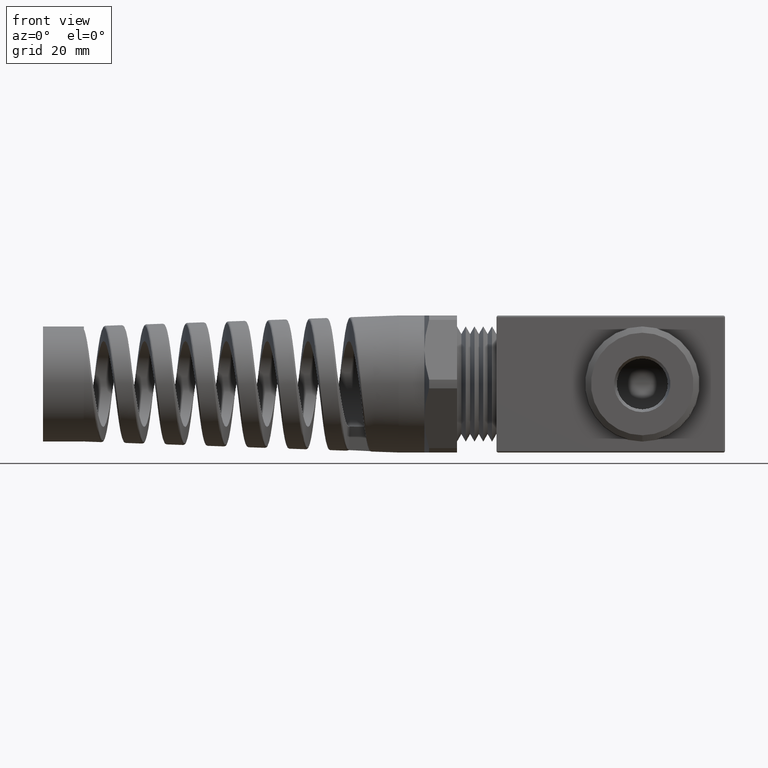
[diagram: clean part render]
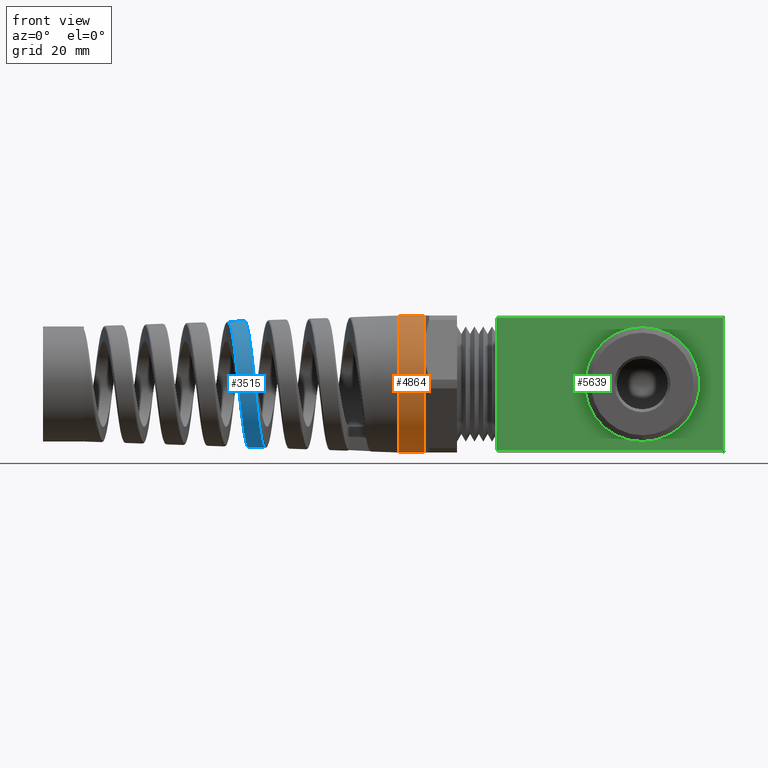
[diagram: same view with three faces highlighted in distinct colors, each labeled with its STEP entity id]
A machine part, front view with three faces highlighted in distinct colors.
Their STEP definitions:

[orange] entity #4864 — the highlighted cylindrical surface (partial cylindrical patch) has radius 11.938 mm, axis along (-1, 0, 0).
#3659 = VERTEX_POINT ( 'NONE', #7512 ) ;
#3689 = VERTEX_POINT ( 'NONE', #7692 ) ;
#4059 = EDGE_CURVE ( 'NONE', #4063, #3689, #8710, .T. ) ;
#4063 = VERTEX_POINT ( 'NONE', #8700 ) ;
#4065 = EDGE_CURVE ( 'NONE', #4113, #3659, #8699, .T. ) ;
#4113 = VERTEX_POINT ( 'NONE', #8954 ) ;
#4530 = EDGE_CURVE ( 'NONE', #6203, #4063, #10232, .T. ) ;
#4641 = EDGE_CURVE ( 'NONE', #4113, #5611, #10367, .T. ) ;
#4648 = EDGE_CURVE ( 'NONE', #5611, #6203, #10349, .T. ) ;
#4864 = ADVANCED_FACE ( 'NONE', ( #10752 ), #10631, .T. ) ;
#4865 = EDGE_LOOP ( 'NONE', ( #4866, #4867, #4868, #4872, #4873, #4874 ) ) ;
#4866 = ORIENTED_EDGE ( 'NONE', *, *, #4065, .F. ) ;
#4867 = ORIENTED_EDGE ( 'NONE', *, *, #4641, .T. ) ;
#4868 = ORIENTED_EDGE ( 'NONE', *, *, #4648, .T. ) ;
#4872 = ORIENTED_EDGE ( 'NONE', *, *, #4530, .T. ) ;
#4873 = ORIENTED_EDGE ( 'NONE', *, *, #4059, .T. ) ;
#4874 = ORIENTED_EDGE ( 'NONE', *, *, #4875, .F. ) ;
#4875 = EDGE_CURVE ( 'NONE', #3659, #3689, #10621, .T. ) ;
#5611 = VERTEX_POINT ( 'NONE', #8273 ) ;
#6203 = VERTEX_POINT ( 'NONE', #8473 ) ;
#7512 = CARTESIAN_POINT ( 'NONE',  ( -0.6720000000000001500, 5.755839955992558400E-017, -0.4699999999999998600 ) ) ;
#7692 = CARTESIAN_POINT ( 'NONE',  ( -0.6720000000000001500, 0.0000000000000000000, 0.4699999999999998600 ) ) ;
#8273 = CARTESIAN_POINT ( 'NONE',  ( -0.4951578947368421300, -0.4070319397786861200, -0.2350000000000000400 ) ) ;
#8473 = CARTESIAN_POINT ( 'NONE',  ( -0.4951578947368421300, -0.4070319397786864600, 0.2349999999999999600 ) ) ;
#8696 = DIRECTION ( 'NONE',  ( -1.000000000000000000, 0.0000000000000000000, 0.0000000000000000000 ) ) ;
#8697 = VECTOR ( 'NONE', #8696, 39.37007874015748100 ) ;
#8698 = CARTESIAN_POINT ( 'NONE',  ( -0.7238591030180623300, 5.755839955992558400E-017, -0.4699999999999998600 ) ) ;
#8699 = LINE ( 'NONE', #8698, #8697 ) ;
#8700 = CARTESIAN_POINT ( 'NONE',  ( -0.4951578947368421300, 0.0000000000000000000, 0.4699999999999998600 ) ) ;
#8707 = DIRECTION ( 'NONE',  ( -1.000000000000000000, 0.0000000000000000000, 0.0000000000000000000 ) ) ;
#8708 = VECTOR ( 'NONE', #8707, 39.37007874015748100 ) ;
#8709 = CARTESIAN_POINT ( 'NONE',  ( -0.7238591030180623300, 0.0000000000000000000, 0.4699999999999998600 ) ) ;
#8710 = LINE ( 'NONE', #8709, #8708 ) ;
#8954 = CARTESIAN_POINT ( 'NONE',  ( -0.4951578947368421300, 0.0000000000000000000, -0.4700000000000000300 ) ) ;
#10223 = DIRECTION ( 'NONE',  ( 0.0000000000000000000, 0.0000000000000000000, 1.000000000000000000 ) ) ;
#10232 = CIRCLE ( 'NONE', #10241, 0.4699999999999998600 ) ;
#10241 = AXIS2_PLACEMENT_3D ( 'NONE', #10358, #10357, #10223 ) ;
#10345 = DIRECTION ( 'NONE',  ( 0.0000000000000000000, 0.0000000000000000000, 1.000000000000000000 ) ) ;
#10346 = DIRECTION ( 'NONE',  ( -1.000000000000000000, 0.0000000000000000000, 0.0000000000000000000 ) ) ;
#10347 = CARTESIAN_POINT ( 'NONE',  ( -0.4951578947368421300, 0.0000000000000000000, 0.0000000000000000000 ) ) ;
#10348 = AXIS2_PLACEMENT_3D ( 'NONE', #10347, #10346, #10345 ) ;
#10349 = CIRCLE ( 'NONE', #10348, 0.4699999999999998600 ) ;
#10357 = DIRECTION ( 'NONE',  ( -1.000000000000000000, 0.0000000000000000000, 0.0000000000000000000 ) ) ;
#10358 = CARTESIAN_POINT ( 'NONE',  ( -0.4951578947368421300, 0.0000000000000000000, 0.0000000000000000000 ) ) ;
#10363 = DIRECTION ( 'NONE',  ( 0.0000000000000000000, 0.0000000000000000000, 1.000000000000000000 ) ) ;
#10364 = DIRECTION ( 'NONE',  ( -1.000000000000000000, 0.0000000000000000000, 0.0000000000000000000 ) ) ;
#10365 = CARTESIAN_POINT ( 'NONE',  ( -0.4951578947368421300, 0.0000000000000000000, 0.0000000000000000000 ) ) ;
#10366 = AXIS2_PLACEMENT_3D ( 'NONE', #10365, #10364, #10363 ) ;
#10367 = CIRCLE ( 'NONE', #10366, 0.4699999999999998600 ) ;
#10617 = DIRECTION ( 'NONE',  ( 0.0000000000000000000, 0.0000000000000000000, 1.000000000000000000 ) ) ;
#10618 = DIRECTION ( 'NONE',  ( -1.000000000000000000, 0.0000000000000000000, 0.0000000000000000000 ) ) ;
#10619 = CARTESIAN_POINT ( 'NONE',  ( -0.6720000000000001500, 0.0000000000000000000, 0.0000000000000000000 ) ) ;
#10620 = AXIS2_PLACEMENT_3D ( 'NONE', #10619, #10618, #10617 ) ;
#10621 = CIRCLE ( 'NONE', #10620, 0.4699999999999998600 ) ;
#10626 = DIRECTION ( 'NONE',  ( 0.0000000000000000000, 0.0000000000000000000, 1.000000000000000000 ) ) ;
#10627 = DIRECTION ( 'NONE',  ( -1.000000000000000000, 0.0000000000000000000, 0.0000000000000000000 ) ) ;
#10628 = CARTESIAN_POINT ( 'NONE',  ( -0.7238591030180623300, 0.0000000000000000000, 0.0000000000000000000 ) ) ;
#10629 = AXIS2_PLACEMENT_3D ( 'NONE', #10628, #10627, #10626 ) ;
#10631 = CYLINDRICAL_SURFACE ( 'NONE', #10629, 0.4699999999999998600 ) ;
#10752 = FACE_OUTER_BOUND ( 'NONE', #4865, .T. ) ;

[blue] entity #3515 — the highlighted conical surface has half-angle 2 deg.
#3515 = ADVANCED_FACE ( 'NONE', ( #6146 ), #6145, .T. ) ;
#3516 = ORIENTED_EDGE ( 'NONE', *, *, #3674, .T. ) ;
#3517 = ORIENTED_EDGE ( 'NONE', *, *, #3584, .T. ) ;
#3518 = EDGE_LOOP ( 'NONE', ( #3529, #3581, #3516, #3517 ) ) ;
#3529 = ORIENTED_EDGE ( 'NONE', *, *, #3664, .F. ) ;
#3530 = EDGE_CURVE ( 'NONE', #3556, #3678, #6399, .T. ) ;
#3556 = VERTEX_POINT ( 'NONE', #6671 ) ;
#3581 = ORIENTED_EDGE ( 'NONE', *, *, #3530, .T. ) ;
#3584 = EDGE_CURVE ( 'NONE', #3672, #3665, #6841, .T. ) ;
#3664 = EDGE_CURVE ( 'NONE', #3556, #3665, #7366, .T. ) ;
#3665 = VERTEX_POINT ( 'NONE', #7246 ) ;
#3672 = VERTEX_POINT ( 'NONE', #7784 ) ;
#3674 = EDGE_CURVE ( 'NONE', #3678, #3672, #7782, .T. ) ;
#3678 = VERTEX_POINT ( 'NONE', #7807 ) ;
#6139 = DIRECTION ( 'NONE',  ( 0.0000000000000000000, 0.0000000000000000000, -1.000000000000000000 ) ) ;
#6140 = DIRECTION ( 'NONE',  ( 1.000000000000000000, 0.0000000000000000000, 0.0000000000000000000 ) ) ;
#6141 = CARTESIAN_POINT ( 'NONE',  ( -0.6720000000000001500, 0.0000000000000000000, 0.0000000000000000000 ) ) ;
#6142 = AXIS2_PLACEMENT_3D ( 'NONE', #6141, #6140, #6139 ) ;
#6145 = CONICAL_SURFACE ( 'NONE', #6142, 0.4699999999999998600, 0.03490658503987965200 ) ;
#6146 = FACE_OUTER_BOUND ( 'NONE', #3518, .T. ) ;
#6298 = CARTESIAN_POINT ( 'NONE',  ( -1.701181390279761900, 1.641649731904183700E-014, -0.4340601939048510100 ) ) ;
#6299 = CARTESIAN_POINT ( 'NONE',  ( -1.702644112074751500, -0.01420979355368741500, -0.4340091145342182500 ) ) ;
#6301 = CARTESIAN_POINT ( 'NONE',  ( -1.704110953030001400, -0.02844996807434017200, -0.4332542253267708800 ) ) ;
#6302 = CARTESIAN_POINT ( 'NONE',  ( -1.707019070579343800, -0.05653010050607930300, -0.4303891755557876000 ) ) ;
#6303 = CARTESIAN_POINT ( 'NONE',  ( -1.708467330347172200, -0.07043814989449209700, -0.4282796158826093800 ) ) ;
#6304 = CARTESIAN_POINT ( 'NONE',  ( -1.711364733536664900, -0.09799214312385579100, -0.4227229919480708900 ) ) ;
#6306 = CARTESIAN_POINT ( 'NONE',  ( -1.712813379440781200, -0.1116381423913346100, -0.4192759426667186400 ) ) ;
#6307 = CARTESIAN_POINT ( 'NONE',  ( -1.715725316373403400, -0.1386624117519069400, -0.4110230441560466800 ) ) ;
#6309 = CARTESIAN_POINT ( 'NONE',  ( -1.717196818389192800, -0.1521131111328581100, -0.4061845896642259900 ) ) ;
#6310 = CARTESIAN_POINT ( 'NONE',  ( -1.721583276457386400, -0.1914027668722269900, -0.3898208893996132900 ) ) ;
#6311 = CARTESIAN_POINT ( 'NONE',  ( -1.724468527878077100, -0.2161856841232228100, -0.3765094446776262600 ) ) ;
#6312 = CARTESIAN_POINT ( 'NONE',  ( -1.728823773638258800, -0.2512842977106058400, -0.3530234542408881600 ) ) ;
#6313 = CARTESIAN_POINT ( 'NONE',  ( -1.730280035489450800, -0.2626354659091191800, -0.3446042196776084000 ) ) ;
#6314 = CARTESIAN_POINT ( 'NONE',  ( -1.733216268685801900, -0.2846176229745902600, -0.3265478075005566700 ) ) ;
#6315 = CARTESIAN_POINT ( 'NONE',  ( -1.734684305625507500, -0.2951549462667126800, -0.3169802254648738100 ) ) ;
#6316 = CARTESIAN_POINT ( 'NONE',  ( -1.739055353414007000, -0.3250594253606823300, -0.2870434927512034400 ) ) ;
#6317 = CARTESIAN_POINT ( 'NONE',  ( -1.741945503069913100, -0.3428999138496016100, -0.2653182116610787200 ) ) ;
#6318 = CARTESIAN_POINT ( 'NONE',  ( -1.746327082708033100, -0.3664864337672270600, -0.2300646039331122300 ) ) ;
#6320 = CARTESIAN_POINT ( 'NONE',  ( -1.747803319054172400, -0.3738490343762085300, -0.2177964925222897800 ) ) ;
#6321 = CARTESIAN_POINT ( 'NONE',  ( -1.750731568438959500, -0.3872179999844248000, -0.1928009476675628900 ) ) ;
#6322 = CARTESIAN_POINT ( 'NONE',  ( -1.752186468215522800, -0.3932469813530609600, -0.1800547669940163700 ) ) ;
#6323 = CARTESIAN_POINT ( 'NONE',  ( -1.756545496468120600, -0.4094118379373461500, -0.1410902057726883000 ) ) ;
#6324 = CARTESIAN_POINT ( 'NONE',  ( -1.759443732269351900, -0.4176441201044482900, -0.1141527611773734500 ) ) ;
#6325 = CARTESIAN_POINT ( 'NONE',  ( -1.765339803648908500, -0.4288143838713690500, -0.05829087737140481500 ) ) ;
#6326 = CARTESIAN_POINT ( 'NONE',  ( -1.768251265675090800, -0.4315784043889400200, -0.03018229527921935700 ) ) ;
#6374 = CARTESIAN_POINT ( 'NONE',  ( -1.772617237797216700, -0.4316279967913189700, 0.01198915971066781200 ) ) ;
#6375 = CARTESIAN_POINT ( 'NONE',  ( -1.774074185992560200, -0.4309594733917492300, 0.02606123887140195800 ) ) ;
#6376 = CARTESIAN_POINT ( 'NONE',  ( -1.777004963103245200, -0.4282237295716516100, 0.05423446360485366400 ) ) ;
#6377 = CARTESIAN_POINT ( 'NONE',  ( -1.778485309218611700, -0.4261389120112483700, 0.06839652613781088700 ) ) ;
#6378 = CARTESIAN_POINT ( 'NONE',  ( -1.782883244161567400, -0.4178857085589426900, 0.1100580651535574600 ) ) ;
#6379 = CARTESIAN_POINT ( 'NONE',  ( -1.785781620847442000, -0.4097391555462270900, 0.1369691386260976400 ) ) ;
#6380 = CARTESIAN_POINT ( 'NONE',  ( -1.791626738169258100, -0.3882283739201416500, 0.1890753835268080800 ) ) ;
#6381 = CARTESIAN_POINT ( 'NONE',  ( -1.794596536370693900, -0.3746977995052165300, 0.2144343825307670200 ) ) ;
#6382 = CARTESIAN_POINT ( 'NONE',  ( -1.800443758841255800, -0.3434119407039851200, 0.2612908286769719000 ) ) ;
#6383 = CARTESIAN_POINT ( 'NONE',  ( -1.803347702722440500, -0.3255930954241457200, 0.2830480151973148700 ) ) ;
#6384 = CARTESIAN_POINT ( 'NONE',  ( -1.807759860732117500, -0.2955441974868409600, 0.3131223055031205300 ) ) ;
#6385 = CARTESIAN_POINT ( 'NONE',  ( -1.809243155391063500, -0.2849409437219952400, 0.3227307476018535000 ) ) ;
#6386 = CARTESIAN_POINT ( 'NONE',  ( -1.812178817544610100, -0.2630736205449626900, 0.3406619077310822900 ) ) ;
#6387 = CARTESIAN_POINT ( 'NONE',  ( -1.815099381809446100, -0.2404425827539012400, 0.3574208175820362000 ) ) ;
#6388 = CARTESIAN_POINT ( 'NONE',  ( -1.818019088529187600, -0.2163131579766350600, 0.3718742939658035200 ) ) ;
#6389 = CARTESIAN_POINT ( 'NONE',  ( -1.820952340603763500, -0.1914274320555462700, 0.3851614396907959100 ) ) ;
#6390 = CARTESIAN_POINT ( 'NONE',  ( -1.822431673270433500, -0.1785534789218994100, 0.3912432745792098200 ) ) ;
#6391 = CARTESIAN_POINT ( 'NONE',  ( -1.826869993670169100, -0.1391188729067892900, 0.4075193605569085700 ) ) ;
#6392 = CARTESIAN_POINT ( 'NONE',  ( -1.829783408204705800, -0.1121596378978966400, 0.4156217606776904100 ) ) ;
#6393 = CARTESIAN_POINT ( 'NONE',  ( -1.834173036148998500, -0.07075670660705882200, 0.4237799771779972600 ) ) ;
#6395 = CARTESIAN_POINT ( 'NONE',  ( -1.835639224060608100, -0.05679385894752470000, 0.4258286824240877800 ) ) ;
#6396 = CARTESIAN_POINT ( 'NONE',  ( -1.838592442112287000, -0.02853695656774262900, 0.4285471996270464000 ) ) ;
#6397 = CARTESIAN_POINT ( 'NONE',  ( -1.840080810731173900, -0.01422985886500045100, 0.4292097192607330900 ) ) ;
#6398 = CARTESIAN_POINT ( 'NONE',  ( -1.841561912663938900, 6.880618639986111400E-014, 0.4291579980415429200 ) ) ;
#6399 = B_SPLINE_CURVE_WITH_KNOTS ( 'NONE', 3,
 ( #6398, #6397, #6396, #6395, #6393, #6392, #6391, #6390, #6389, #6388, #6387, #6386, #6385, #6384, #6383, #6382, #6381, #6380, #6379, #6378, #6377, #6376, #6375, #6374, #6326, #6325, #6324, #6323, #6322, #6321, #6320, #6318, #6317, #6316, #6315, #6314, #6313, #6312, #6311, #6310, #6309, #6307, #6306, #6304, #6303, #6302, #6301, #6299, #6298 ),
 .UNSPECIFIED., .F., .F.,
 ( 4, 2, 2, 2, 2, 1, 2, 2, 2, 2, 2, 2, 2, 2, 2, 2, 2, 2, 2, 2, 2, 2, 2, 2, 4 ),
 ( 0.2349370397999832300, 0.2360280126698850700, 0.2371189855397869100, 0.2393009312795906200, 0.2403919041494924600, 0.2414828770193943000, 0.2425738498892961700, 0.2436648227591980100, 0.2458467684990016900, 0.2480287142388054000, 0.2502106599786090800, 0.2513016328485109300, 0.2523926057184128200, 0.2545745514582165000, 0.2567564971980201800, 0.2578474700679220200, 0.2589384429378238700, 0.2611203886776275500, 0.2622113615475294400, 0.2633023344174312800, 0.2654842801572349600, 0.2665752530271368000, 0.2676662258970387000, 0.2687571987669405400, 0.2698481716368423800 ),
 .UNSPECIFIED. ) ;
#6671 = CARTESIAN_POINT ( 'NONE',  ( -1.841561912663938900, 6.880618639986111400E-014, 0.4291579980415429200 ) ) ;
#6745 = CARTESIAN_POINT ( 'NONE',  ( -1.728496292560557600, 6.448449370927661500E-013, 0.4331063364986138500 ) ) ;
#6746 = CARTESIAN_POINT ( 'NONE',  ( -1.727032796396527700, -0.01418905300640860300, 0.4331574429108310300 ) ) ;
#6747 = CARTESIAN_POINT ( 'NONE',  ( -1.725570734797941000, -0.02837149844281751400, 0.4325128959702563800 ) ) ;
#6748 = CARTESIAN_POINT ( 'NONE',  ( -1.722634789190462800, -0.05672151454040256400, 0.4298184002839550200 ) ) ;
#6749 = CARTESIAN_POINT ( 'NONE',  ( -1.721155154733562800, -0.07094397495604347300, 0.4277573018434958100 ) ) ;
#6750 = CARTESIAN_POINT ( 'NONE',  ( -1.716714569260143800, -0.1132091835097240900, 0.4194590072836130200 ) ) ;
#6751 = CARTESIAN_POINT ( 'NONE',  ( -1.713797684887865100, -0.1404136998483418200, 0.4112378394931411900 ) ) ;
#6752 = CARTESIAN_POINT ( 'NONE',  ( -1.709404778173730300, -0.1798023246445750500, 0.3950086206961541700 ) ) ;
#6753 = CARTESIAN_POINT ( 'NONE',  ( -1.707937996720171500, -0.1926938316063216100, 0.3889445531285036200 ) ) ;
#6754 = CARTESIAN_POINT ( 'NONE',  ( -1.704986217113623900, -0.2179867062521250500, 0.3754730622853164100 ) ) ;
#6755 = CARTESIAN_POINT ( 'NONE',  ( -1.703502866350403700, -0.2303624107148889700, 0.3680683294390321700 ) ) ;
#6756 = CARTESIAN_POINT ( 'NONE',  ( -1.699100119797373200, -0.2659384595449096900, 0.3443270267781719000 ) ) ;
#6757 = CARTESIAN_POINT ( 'NONE',  ( -1.696195509476295000, -0.2878838382683987500, 0.3263359218205893500 ) ) ;
#6758 = CARTESIAN_POINT ( 'NONE',  ( -1.691796985386900200, -0.3181398987924974900, 0.2961132521832108300 ) ) ;
#6759 = CARTESIAN_POINT ( 'NONE',  ( -1.690315829708985500, -0.3278267162535780700, 0.2854344364267019100 ) ) ;
#6760 = CARTESIAN_POINT ( 'NONE',  ( -1.687367242087491700, -0.3460050863785526000, 0.2632738688815566800 ) ) ;
#6761 = CARTESIAN_POINT ( 'NONE',  ( -1.685902988699123700, -0.3544838044889230800, 0.2518225895381558400 ) ) ;
#6762 = CARTESIAN_POINT ( 'NONE',  ( -1.681519356481679700, -0.3781372831004146100, 0.2163878157322121900 ) ) ;
#6763 = CARTESIAN_POINT ( 'NONE',  ( -1.678610912184778500, -0.3915464063138171000, 0.1913334880431694100 ) ) ;
#6764 = CARTESIAN_POINT ( 'NONE',  ( -1.674187151363354800, -0.4080044045247609400, 0.1515449922944703800 ) ) ;
#6765 = CARTESIAN_POINT ( 'NONE',  ( -1.672711971565813000, -0.4128334031424782400, 0.1379989758749579400 ) ) ;
#6766 = CARTESIAN_POINT ( 'NONE',  ( -1.669787576939567600, -0.4210727902528377300, 0.1107326021140413500 ) ) ;
#6767 = CARTESIAN_POINT ( 'NONE',  ( -1.666876532697620900, -0.4279415194524970300, 0.08317866981833362000 ) ) ;
#6768 = CARTESIAN_POINT ( 'NONE',  ( -1.663963255881116600, -0.4320999482529644900, 0.05505914403379411800 ) ) ;
#6769 = CARTESIAN_POINT ( 'NONE',  ( -1.661034253586014500, -0.4348799101348952400, 0.02665349294519110300 ) ) ;
#6770 = CARTESIAN_POINT ( 'NONE',  ( -1.659553792975228900, -0.4355772931154724400, 0.01222852141676980200 ) ) ;
#6771 = CARTESIAN_POINT ( 'NONE',  ( -1.655146842097829500, -0.4355259634450608900, -0.03070332094538681000 ) ) ;
#6772 = CARTESIAN_POINT ( 'NONE',  ( -1.652245188139868100, -0.4326979440143576300, -0.05895456623243505000 ) ) ;
#6773 = CARTESIAN_POINT ( 'NONE',  ( -1.646414419844903600, -0.4215679543564629900, -0.1147218859810580900 ) ) ;
#6774 = CARTESIAN_POINT ( 'NONE',  ( -1.643455324272692800, -0.4131242745051267300, -0.1424805454140991900 ) ) ;
#6775 = CARTESIAN_POINT ( 'NONE',  ( -1.637626030724792700, -0.3912873582254244900, -0.1950491091797437200 ) ) ;
#6776 = CARTESIAN_POINT ( 'NONE',  ( -1.634734668394330700, -0.3779022835100951900, -0.2200775413603335000 ) ) ;
#6777 = CARTESIAN_POINT ( 'NONE',  ( -1.630346231522706400, -0.3540891330401709200, -0.2557082727626475100 ) ) ;
#6778 = CARTESIAN_POINT ( 'NONE',  ( -1.628868030536101000, -0.3454780789760023600, -0.2673126776197508600 ) ) ;
#6779 = CARTESIAN_POINT ( 'NONE',  ( -1.625939893337832800, -0.3273312738067394900, -0.2894040471075615700 ) ) ;
#6780 = CARTESIAN_POINT ( 'NONE',  ( -1.624484504618177300, -0.3177711134097622200, -0.2999390996692311600 ) ) ;
#6781 = CARTESIAN_POINT ( 'NONE',  ( -1.620125769997380800, -0.2876631510987359700, -0.3300440720302896800 ) ) ;
#6830 = CARTESIAN_POINT ( 'NONE',  ( -1.617229733442265800, -0.2656924294788278700, -0.3481344438121888300 ) ) ;
#6831 = CARTESIAN_POINT ( 'NONE',  ( -1.611347329421714000, -0.2178566098038433300, -0.3801422495085310400 ) ) ;
#6832 = CARTESIAN_POINT ( 'NONE',  ( -1.608456165064698200, -0.1927664804096513000, -0.3935436545086648500 ) ) ;
#6833 = CARTESIAN_POINT ( 'NONE',  ( -1.604106518908452700, -0.1534527413218125800, -0.4098979285965812000 ) ) ;
#6834 = CARTESIAN_POINT ( 'NONE',  ( -1.602654613768336600, -0.1400663531658275200, -0.4147201708230379700 ) ) ;
#6835 = CARTESIAN_POINT ( 'NONE',  ( -1.599732682423825800, -0.1127189375022764600, -0.4230781685035035500 ) ) ;
#6836 = CARTESIAN_POINT ( 'NONE',  ( -1.598257785439662700, -0.09870960820034639600, -0.4266166189982630300 ) ) ;
#6837 = CARTESIAN_POINT ( 'NONE',  ( -1.593879676840714400, -0.05670243892096409700, -0.4350585648589527800 ) ) ;
#6839 = CARTESIAN_POINT ( 'NONE',  ( -1.590996278311239900, -0.02846395047666128500, -0.4379079428013524200 ) ) ;
#6840 = CARTESIAN_POINT ( 'NONE',  ( -1.588092709410927000, 4.200476721658699400E-013, -0.4380093376615965500 ) ) ;
#6841 = B_SPLINE_CURVE_WITH_KNOTS ( 'NONE', 3,
 ( #6840, #6839, #6837, #6836, #6835, #6834, #6833, #6832, #6831, #6830, #6781, #6780, #6779, #6778, #6777, #6776, #6775, #6774, #6773, #6772, #6771, #6770, #6769, #6768, #6767, #6766, #6765, #6764, #6763, #6762, #6761, #6760, #6759, #6758, #6757, #6756, #6755, #6754, #6753, #6752, #6751, #6750, #6749, #6748, #6747, #6746, #6745 ),
 .UNSPECIFIED., .F., .F.,
 ( 4, 2, 2, 2, 2, 2, 2, 2, 2, 2, 2, 2, 1, 2, 2, 2, 2, 2, 2, 2, 2, 2, 2, 4 ),
 ( 0.1465185604270087500, 0.1487203717819511300, 0.1498212774594223100, 0.1509221831368935100, 0.1531239944918358900, 0.1553258058467782700, 0.1564267115242494700, 0.1575276172017206500, 0.1597294285566630300, 0.1619312399116054100, 0.1641330512665477900, 0.1652339569440189600, 0.1663348626214901600, 0.1674357682989613400, 0.1685366739764325400, 0.1707384853313749200, 0.1718393910088461300, 0.1729402966863173000, 0.1751421080412597100, 0.1762430137187309100, 0.1773439193962020900, 0.1795457307511444900, 0.1806466364286156700, 0.1817475421060868700 ),
 .UNSPECIFIED. ) ;
#7246 = CARTESIAN_POINT ( 'NONE',  ( -1.728496292560557600, 6.448449370927661500E-013, 0.4331063364986138500 ) ) ;
#7247 = DIRECTION ( 'NONE',  ( 0.9993908270190959800, 4.273955692856292900E-018, 0.03489949670249403700 ) ) ;
#7248 = VECTOR ( 'NONE', #7247, 39.37007874015748100 ) ;
#7365 = CARTESIAN_POINT ( 'NONE',  ( -0.6720000000000001500, 5.755839955992558400E-017, 0.4699999999999998600 ) ) ;
#7366 = LINE ( 'NONE', #7365, #7248 ) ;
#7782 = LINE ( 'NONE', #7810, #7809 ) ;
#7784 = CARTESIAN_POINT ( 'NONE',  ( -1.588092709410927000, 4.200476721658699400E-013, -0.4380093376615965500 ) ) ;
#7807 = CARTESIAN_POINT ( 'NONE',  ( -1.701181390279761900, 1.641649731904183700E-014, -0.4340601939048510100 ) ) ;
#7808 = DIRECTION ( 'NONE',  ( 0.9993908270190959800, 0.0000000000000000000, -0.03489949670249403700 ) ) ;
#7809 = VECTOR ( 'NONE', #7808, 39.37007874015748100 ) ;
#7810 = CARTESIAN_POINT ( 'NONE',  ( -0.6720000000000001500, 0.0000000000000000000, -0.4699999999999998600 ) ) ;

[green] entity #5639 — the highlighted planar face has unit normal (0, -1, 0).
#3876 = DIRECTION ( 'NONE',  ( 1.000000000000000000, 1.306687496969513800E-016, 0.0000000000000000000 ) ) ;
#3877 = VECTOR ( 'NONE', #3876, 39.37007874015748100 ) ;
#3878 = CARTESIAN_POINT ( 'NONE',  ( 1.567999999999999800, -0.5999999999999999800, -0.4573446327683616300 ) ) ;
#3879 = LINE ( 'NONE', #3878, #3877 ) ;
#3880 = CARTESIAN_POINT ( 'NONE',  ( 1.665464641198561200E-017, -0.6000000000000002000, 0.4573446327683619000 ) ) ;
#3881 = DIRECTION ( 'NONE',  ( 0.0000000000000000000, 0.0000000000000000000, 1.000000000000000000 ) ) ;
#3882 = VECTOR ( 'NONE', #3881, 39.37007874015748100 ) ;
#3883 = CARTESIAN_POINT ( 'NONE',  ( 1.665464641198561200E-017, -0.6000000000000002000, -2.444493352736341500 ) ) ;
#3889 = LINE ( 'NONE', #3883, #3882 ) ;
#3940 = DIRECTION ( 'NONE',  ( -1.000000000000000000, -1.306687496969513800E-016, 0.0000000000000000000 ) ) ;
#3941 = VECTOR ( 'NONE', #3940, 39.37007874015748100 ) ;
#3942 = CARTESIAN_POINT ( 'NONE',  ( 1.653661013113961400E-018, -0.6000000000000002000, 0.4573446327683619000 ) ) ;
#3943 = LINE ( 'NONE', #3942, #3941 ) ;
#3950 = CARTESIAN_POINT ( 'NONE',  ( 1.555344632768361500, -0.5999999999999999800, -0.4573446327683616300 ) ) ;
#3951 = DIRECTION ( 'NONE',  ( 0.0000000000000000000, 0.0000000000000000000, 1.000000000000000000 ) ) ;
#3952 = VECTOR ( 'NONE', #3951, 39.37007874015748100 ) ;
#3953 = CARTESIAN_POINT ( 'NONE',  ( 1.555344632768361500, -0.5999999999999999800, -2.444493352736341500 ) ) ;
#3954 = LINE ( 'NONE', #3953, #3952 ) ;
#3955 = CARTESIAN_POINT ( 'NONE',  ( 1.555344632768361500, -0.5999999999999999800, 0.4573446327683619000 ) ) ;
#5348 = ORIENTED_EDGE ( 'NONE', *, *, #5349, .F. ) ;
#5349 = EDGE_CURVE ( 'NONE', #5644, #5350, #3889, .T. ) ;
#5350 = VERTEX_POINT ( 'NONE', #3880 ) ;
#5351 = ORIENTED_EDGE ( 'NONE', *, *, #5352, .T. ) ;
#5352 = EDGE_CURVE ( 'NONE', #5644, #5394, #3879, .T. ) ;
#5353 = ORIENTED_EDGE ( 'NONE', *, *, #5392, .T. ) ;
#5354 = ORIENTED_EDGE ( 'NONE', *, *, #5355, .T. ) ;
#5355 = EDGE_CURVE ( 'NONE', #5389, #5350, #3943, .T. ) ;
#5389 = VERTEX_POINT ( 'NONE', #3955 ) ;
#5392 = EDGE_CURVE ( 'NONE', #5394, #5389, #3954, .T. ) ;
#5394 = VERTEX_POINT ( 'NONE', #3950 ) ;
#5530 = EDGE_CURVE ( 'NONE', #5598, #5595, #5875, .T. ) ;
#5595 = VERTEX_POINT ( 'NONE', #8239 ) ;
#5597 = EDGE_CURVE ( 'NONE', #5595, #5598, #8237, .T. ) ;
#5598 = VERTEX_POINT ( 'NONE', #8232 ) ;
#5639 = ADVANCED_FACE ( 'NONE', ( #8292, #8291 ), #8289, .T. ) ;
#5640 = EDGE_LOOP ( 'NONE', ( #5641, #5642 ) ) ;
#5641 = ORIENTED_EDGE ( 'NONE', *, *, #5530, .F. ) ;
#5642 = ORIENTED_EDGE ( 'NONE', *, *, #5597, .F. ) ;
#5643 = EDGE_LOOP ( 'NONE', ( #5348, #5351, #5353, #5354 ) ) ;
#5644 = VERTEX_POINT ( 'NONE', #8290 ) ;
#5871 = DIRECTION ( 'NONE',  ( 1.000000000000000000, 1.729017717509027700E-016, 0.0000000000000000000 ) ) ;
#5872 = DIRECTION ( 'NONE',  ( 1.306687496969513800E-016, -1.000000000000000000, 0.0000000000000000000 ) ) ;
#5873 = CARTESIAN_POINT ( 'NONE',  ( 1.000155367231638600, -0.5999999999999999800, -2.785979454945908300E-017 ) ) ;
#5874 = AXIS2_PLACEMENT_3D ( 'NONE', #5873, #5872, #5871 ) ;
#5875 = CIRCLE ( 'NONE', #5874, 0.3949999999999999100 ) ;
#8232 = CARTESIAN_POINT ( 'NONE',  ( 1.000155367231638600, -0.5999999999999999800, 0.3949999999999999100 ) ) ;
#8233 = DIRECTION ( 'NONE',  ( 1.000000000000000000, 1.729017717509027700E-016, 0.0000000000000000000 ) ) ;
#8234 = DIRECTION ( 'NONE',  ( 1.306687496969513800E-016, -1.000000000000000000, 0.0000000000000000000 ) ) ;
#8235 = CARTESIAN_POINT ( 'NONE',  ( 1.000155367231638600, -0.5999999999999999800, -2.785979454945908300E-017 ) ) ;
#8236 = AXIS2_PLACEMENT_3D ( 'NONE', #8235, #8234, #8233 ) ;
#8237 = CIRCLE ( 'NONE', #8236, 0.3949999999999999100 ) ;
#8239 = CARTESIAN_POINT ( 'NONE',  ( 1.000155367231638600, -0.5999999999999999800, -0.3949999999999999100 ) ) ;
#8285 = DIRECTION ( 'NONE',  ( 1.000000000000000000, 1.306687496969513800E-016, 0.0000000000000000000 ) ) ;
#8286 = DIRECTION ( 'NONE',  ( 1.306687496969513800E-016, -1.000000000000000000, 0.0000000000000000000 ) ) ;
#8287 = CARTESIAN_POINT ( 'NONE',  ( 1.567999999999999800, -0.5999999999999999800, -2.444493352736341500 ) ) ;
#8288 = AXIS2_PLACEMENT_3D ( 'NONE', #8287, #8286, #8285 ) ;
#8289 = PLANE ( 'NONE',  #8288 ) ;
#8290 = CARTESIAN_POINT ( 'NONE',  ( 1.665464641198561200E-017, -0.6000000000000002000, -0.4573446327683619000 ) ) ;
#8291 = FACE_OUTER_BOUND ( 'NONE', #5643, .T. ) ;
#8292 = FACE_BOUND ( 'NONE', #5640, .T. ) ;